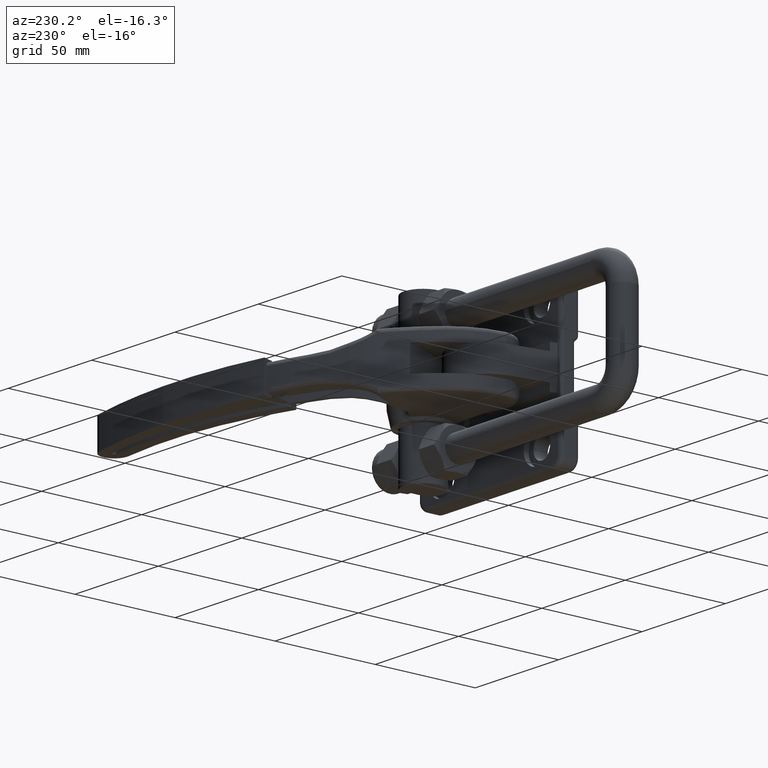
[diagram: clean part render]
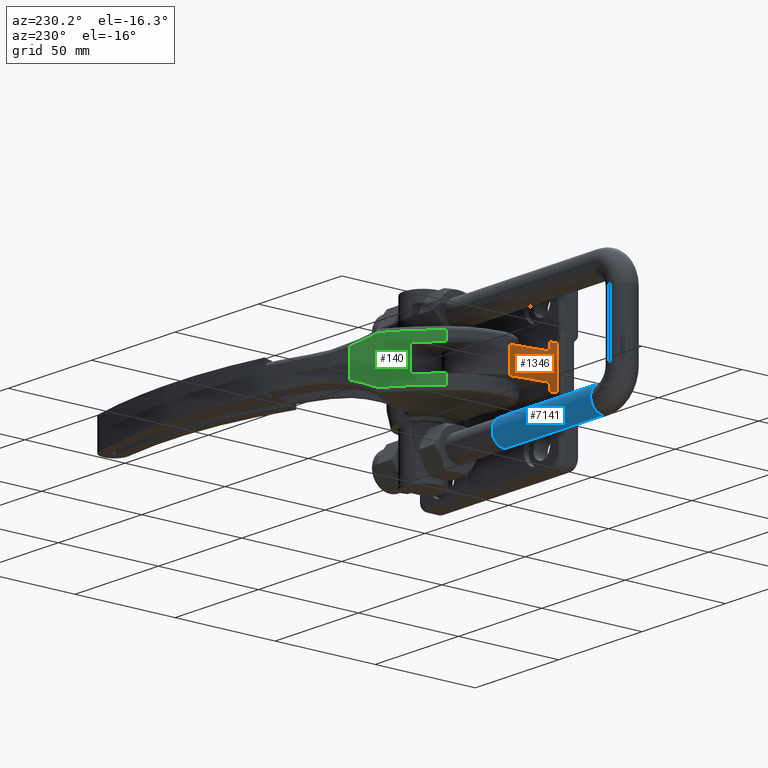
[diagram: same view with three faces highlighted in distinct colors, each labeled with its STEP entity id]
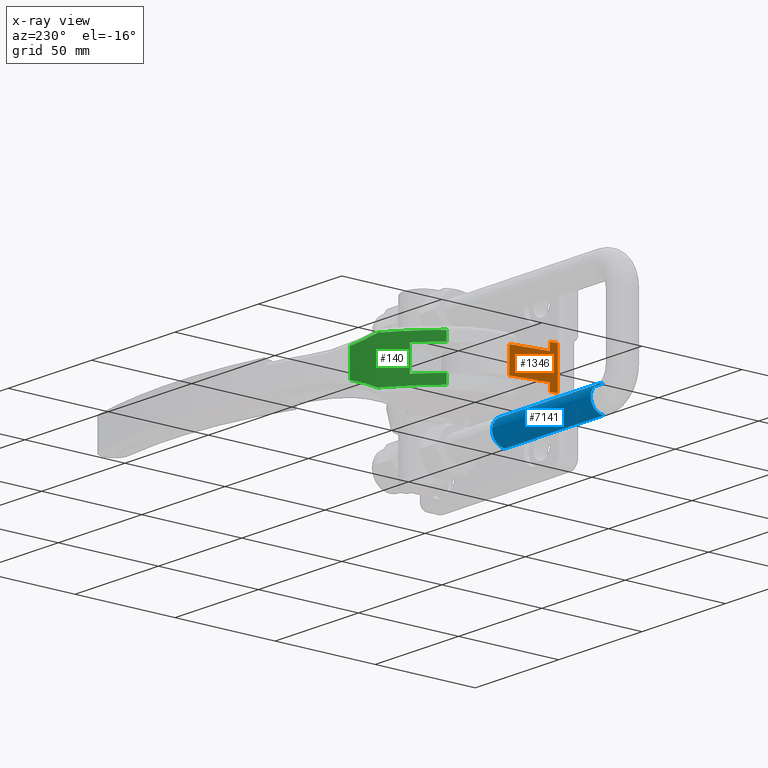
[diagram: x-ray of the same camera — body ghosted, the three highlighted faces saturated]
A machine part, auxiliary view with three faces highlighted in distinct colors.
The next image is the same camera in x-ray (body ghosted, the three faces saturated) — at least one of them is partly hidden behind the body in this view.
Their STEP definitions:

[orange] entity #1346 — the highlighted planar face has unit normal (0.9892, -0.1465, -0).
#401 = CARTESIAN_POINT ( 'NONE',  ( -37.71649960225405400, 31.09105221289900500, 6.250000000000000000 ) ) ;
#568 = LINE ( 'NONE', #6658, #5862 ) ;
#1132 = FACE_OUTER_BOUND ( 'NONE', #11174, .T. ) ;
#1207 = CARTESIAN_POINT ( 'NONE',  ( -40.39635312198255700, 13.00000000000000200, 10.00000000000000000 ) ) ;
#1346 = ADVANCED_FACE ( 'NONE', ( #1132 ), #12502, .F. ) ;
#1509 = VECTOR ( 'NONE', #10514, 1000.000000000000000 ) ;
#1609 = DIRECTION ( 'NONE',  ( 0.1465324831117064400, 0.9892058589561211200, -6.291524940292961300E-030 ) ) ;
#1743 = DIRECTION ( 'NONE',  ( -4.622231866529366000E-033, -1.380506584136770700E-030, -1.000000000000000000 ) ) ;
#2136 = AXIS2_PLACEMENT_3D ( 'NONE', #3549, #7562, #1609 ) ;
#2221 = CARTESIAN_POINT ( 'NONE',  ( -40.89999999999999100, 9.599999999999997900, -10.00000000000000000 ) ) ;
#2762 = CARTESIAN_POINT ( 'NONE',  ( -40.89999999999999100, 9.599999999999997900, 10.00000000000000000 ) ) ;
#2803 = DIRECTION ( 'NONE',  ( -0.1465324831117064400, -0.9892058589561212300, 6.291524940292959900E-030 ) ) ;
#2811 = ORIENTED_EDGE ( 'NONE', *, *, #12124, .F. ) ;
#3013 = VERTEX_POINT ( 'NONE', #4336 ) ;
#3535 = VERTEX_POINT ( 'NONE', #12265 ) ;
#3549 = CARTESIAN_POINT ( 'NONE',  ( -37.71649960225405400, 31.09105221289900800, 10.00000000000000000 ) ) ;
#3660 = DIRECTION ( 'NONE',  ( -0.1465324831117063600, -0.9892058589561211200, 0.0000000000000000000 ) ) ;
#3910 = LINE ( 'NONE', #2762, #6232 ) ;
#4106 = ORIENTED_EDGE ( 'NONE', *, *, #4660, .T. ) ;
#4296 = ORIENTED_EDGE ( 'NONE', *, *, #11807, .F. ) ;
#4336 = CARTESIAN_POINT ( 'NONE',  ( -40.89999999999999100, 9.599999999999997900, 10.00000000000000000 ) ) ;
#4381 = VECTOR ( 'NONE', #3660, 1000.000000000000200 ) ;
#4463 = LINE ( 'NONE', #6506, #12117 ) ;
#4627 = CARTESIAN_POINT ( 'NONE',  ( -37.71649960225405400, 31.09105221289900500, -6.250000000000000000 ) ) ;
#4660 = EDGE_CURVE ( 'NONE', #11852, #3535, #9699, .T. ) ;
#4754 = ORIENTED_EDGE ( 'NONE', *, *, #11905, .T. ) ;
#4813 = VECTOR ( 'NONE', #12193, 1000.000000000000000 ) ;
#5049 = LINE ( 'NONE', #9780, #12728 ) ;
#5261 = CARTESIAN_POINT ( 'NONE',  ( -37.71649960225405400, 31.09105221289900500, 6.250000000000000000 ) ) ;
#5349 = EDGE_CURVE ( 'NONE', #7041, #7050, #7479, .T. ) ;
#5562 = CARTESIAN_POINT ( 'NONE',  ( -37.71649960225405400, 31.09105221289900500, -6.250000000000000000 ) ) ;
#5573 = EDGE_CURVE ( 'NONE', #3013, #7241, #3910, .T. ) ;
#5862 = VECTOR ( 'NONE', #9599, 1000.000000000000000 ) ;
#5988 = ORIENTED_EDGE ( 'NONE', *, *, #5573, .F. ) ;
#6232 = VECTOR ( 'NONE', #1743, 1000.000000000000000 ) ;
#6292 = DIRECTION ( 'NONE',  ( -0.1465324831117063600, -0.9892058589561211200, 0.0000000000000000000 ) ) ;
#6506 = CARTESIAN_POINT ( 'NONE',  ( -37.71649960225405400, 31.09105221289900800, 10.00000000000000000 ) ) ;
#6658 = CARTESIAN_POINT ( 'NONE',  ( -37.71649960225405400, 31.09105221289900800, 10.00000000000000000 ) ) ;
#6794 = LINE ( 'NONE', #9516, #1509 ) ;
#7041 = VERTEX_POINT ( 'NONE', #7296 ) ;
#7050 = VERTEX_POINT ( 'NONE', #9328 ) ;
#7200 = VERTEX_POINT ( 'NONE', #12100 ) ;
#7241 = VERTEX_POINT ( 'NONE', #2221 ) ;
#7245 = LINE ( 'NONE', #5261, #12263 ) ;
#7296 = CARTESIAN_POINT ( 'NONE',  ( -40.39635312198255700, 13.00000000000000200, 10.00000000000000000 ) ) ;
#7341 = VERTEX_POINT ( 'NONE', #401 ) ;
#7479 = LINE ( 'NONE', #1207, #4813 ) ;
#7562 = DIRECTION ( 'NONE',  ( 0.9892058589561212300, -0.1465324831117064700, -3.439730132077567700E-029 ) ) ;
#8512 = DIRECTION ( 'NONE',  ( -0.1465324831117064400, -0.9892058589561212300, 6.291524940292959900E-030 ) ) ;
#9328 = CARTESIAN_POINT ( 'NONE',  ( -40.39635312198255700, 13.00000000000000000, 6.250000000000000000 ) ) ;
#9516 = CARTESIAN_POINT ( 'NONE',  ( -40.39635312198255700, 13.00000000000000200, 10.00000000000000000 ) ) ;
#9599 = DIRECTION ( 'NONE',  ( -4.622231866529366000E-033, -1.380506584136770700E-030, -1.000000000000000000 ) ) ;
#9699 = LINE ( 'NONE', #4627, #4381 ) ;
#9780 = CARTESIAN_POINT ( 'NONE',  ( -37.71649960225405400, 31.09105221289900800, -10.00000000000000000 ) ) ;
#10514 = DIRECTION ( 'NONE',  ( -4.622231866529366000E-033, -1.380506584136770700E-030, -1.000000000000000000 ) ) ;
#11174 = EDGE_LOOP ( 'NONE', ( #2811, #4754, #4106, #12688, #12696, #5988, #4296, #12343 ) ) ;
#11807 = EDGE_CURVE ( 'NONE', #7041, #3013, #4463, .T. ) ;
#11808 = EDGE_CURVE ( 'NONE', #3535, #7200, #6794, .T. ) ;
#11852 = VERTEX_POINT ( 'NONE', #5562 ) ;
#11905 = EDGE_CURVE ( 'NONE', #7341, #11852, #568, .T. ) ;
#12100 = CARTESIAN_POINT ( 'NONE',  ( -40.39635312198255700, 13.00000000000000200, -10.00000000000000000 ) ) ;
#12117 = VECTOR ( 'NONE', #8512, 999.9999999999998900 ) ;
#12124 = EDGE_CURVE ( 'NONE', #7341, #7050, #7245, .T. ) ;
#12193 = DIRECTION ( 'NONE',  ( -4.622231866529366000E-033, -1.380506584136770800E-030, -1.000000000000000000 ) ) ;
#12263 = VECTOR ( 'NONE', #6292, 1000.000000000000200 ) ;
#12265 = CARTESIAN_POINT ( 'NONE',  ( -40.39635312198255700, 13.00000000000000000, -6.250000000000000000 ) ) ;
#12343 = ORIENTED_EDGE ( 'NONE', *, *, #5349, .T. ) ;
#12363 = EDGE_CURVE ( 'NONE', #7200, #7241, #5049, .T. ) ;
#12502 = PLANE ( 'NONE',  #2136 ) ;
#12688 = ORIENTED_EDGE ( 'NONE', *, *, #11808, .T. ) ;
#12696 = ORIENTED_EDGE ( 'NONE', *, *, #12363, .T. ) ;
#12728 = VECTOR ( 'NONE', #2803, 999.9999999999998900 ) ;

[blue] entity #7141 — the highlighted cylindrical surface (edge-blend (fillet) strip) has radius 6.35 mm, axis along (1, -0.0023, 0).
#97 = AXIS2_PLACEMENT_3D ( 'NONE', #11982, #5361, #5936 ) ;
#484 = EDGE_LOOP ( 'NONE', ( #3686, #2255, #7410, #11477 ) ) ;
#754 = VECTOR ( 'NONE', #2638, 1000.000000000000200 ) ;
#1260 = AXIS2_PLACEMENT_3D ( 'NONE', #3231, #10184, #4212 ) ;
#2255 = ORIENTED_EDGE ( 'NONE', *, *, #4163, .F. ) ;
#2559 = CARTESIAN_POINT ( 'NONE',  ( -30.76788671759244000, 27.52169864269107800, -33.34999999999997300 ) ) ;
#2638 = DIRECTION ( 'NONE',  ( 0.9999974614537675600, -0.002253239006544745400, 4.573888958998415300E-016 ) ) ;
#2665 = EDGE_CURVE ( 'NONE', #8363, #6148, #8702, .T. ) ;
#2923 = CARTESIAN_POINT ( 'NONE',  ( -90.06773618180093900, 27.65531571577918200, -26.99999999999999600 ) ) ;
#3223 = CARTESIAN_POINT ( 'NONE',  ( -90.06773618180093900, 27.65531571577918200, -20.64999999999999500 ) ) ;
#3231 = CARTESIAN_POINT ( 'NONE',  ( -30.76788671759245400, 27.52169864269107800, -26.99999999999996800 ) ) ;
#3272 = EDGE_CURVE ( 'NONE', #11074, #12253, #10732, .T. ) ;
#3440 = FACE_OUTER_BOUND ( 'NONE', #484, .T. ) ;
#3686 = ORIENTED_EDGE ( 'NONE', *, *, #2665, .F. ) ;
#3923 = DIRECTION ( 'NONE',  ( 0.002253239006545706000, 0.9999974614537675600, 0.0000000000000000000 ) ) ;
#4163 = EDGE_CURVE ( 'NONE', #11074, #8363, #6100, .T. ) ;
#4212 = DIRECTION ( 'NONE',  ( -5.463695987328525500E-016, 0.0000000000000000000, 1.000000000000000000 ) ) ;
#5361 = DIRECTION ( 'NONE',  ( 0.9999974614537675600, -0.002253239006544745400, 4.573888958998415300E-016 ) ) ;
#5400 = VECTOR ( 'NONE', #11939, 1000.000000000000200 ) ;
#5430 = CYLINDRICAL_SURFACE ( 'NONE', #97, 6.350000000000001400 ) ;
#5914 = EDGE_CURVE ( 'NONE', #6148, #12253, #11904, .T. ) ;
#5936 = DIRECTION ( 'NONE',  ( 0.0000000000000000000, 0.0000000000000000000, 1.000000000000000000 ) ) ;
#6100 = CIRCLE ( 'NONE', #11638, 6.349999999999998800 ) ;
#6148 = VERTEX_POINT ( 'NONE', #2559 ) ;
#6472 = CARTESIAN_POINT ( 'NONE',  ( -30.76788671759245400, 27.52169864269107800, -20.64999999999996700 ) ) ;
#7141 = ADVANCED_FACE ( 'NONE', ( #3440 ), #5430, .T. ) ;
#7410 = ORIENTED_EDGE ( 'NONE', *, *, #3272, .T. ) ;
#7999 = CARTESIAN_POINT ( 'NONE',  ( -90.06773618180093900, 27.65531571577918200, -33.34999999999999400 ) ) ;
#8363 = VERTEX_POINT ( 'NONE', #7999 ) ;
#8613 = CARTESIAN_POINT ( 'NONE',  ( -90.06773618180093900, 27.65531571577918200, -33.34999999999999400 ) ) ;
#8702 = LINE ( 'NONE', #8613, #754 ) ;
#9894 = DIRECTION ( 'NONE',  ( -0.9999974614537677800, 0.002253239006544745800, -2.812591432557387700E-016 ) ) ;
#9925 = CARTESIAN_POINT ( 'NONE',  ( -90.06773618180093900, 27.65531571577918200, -20.64999999999999500 ) ) ;
#10184 = DIRECTION ( 'NONE',  ( 0.9999974614537677800, -0.002253239006544745800, 6.827962659925420800E-016 ) ) ;
#10732 = LINE ( 'NONE', #9925, #5400 ) ;
#11074 = VERTEX_POINT ( 'NONE', #3223 ) ;
#11477 = ORIENTED_EDGE ( 'NONE', *, *, #5914, .F. ) ;
#11638 = AXIS2_PLACEMENT_3D ( 'NONE', #2923, #9894, #3923 ) ;
#11904 = CIRCLE ( 'NONE', #1260, 6.350000000000001400 ) ;
#11939 = DIRECTION ( 'NONE',  ( 0.9999974614537675600, -0.002253239006544745400, 4.573888958998415300E-016 ) ) ;
#11982 = CARTESIAN_POINT ( 'NONE',  ( -90.06773618180093900, 27.65531571577918200, -26.99999999999999600 ) ) ;
#12253 = VERTEX_POINT ( 'NONE', #6472 ) ;

[green] entity #140 — the highlighted cylindrical surface (partial cylindrical patch) has radius 90 mm, axis along (0, 0, -1).
#88 = B_SPLINE_CURVE_WITH_KNOTS ( 'NONE', 3,
 ( #2013, #8998, #4989, #12010 ),
 .UNSPECIFIED., .F., .F.,
 ( 4, 4 ),
 ( 3.878959614448861900E-018, 0.01213580260792407300 ),
 .UNSPECIFIED. ) ;
#140 = ADVANCED_FACE ( 'NONE', ( #12252 ), #11629, .T. ) ;
#220 = ORIENTED_EDGE ( 'NONE', *, *, #1698, .T. ) ;
#310 = ORIENTED_EDGE ( 'NONE', *, *, #2824, .T. ) ;
#573 = VERTEX_POINT ( 'NONE', #5157 ) ;
#715 = DIRECTION ( 'NONE',  ( 0.0000000000000000000, 0.0000000000000000000, 1.000000000000000000 ) ) ;
#958 = CIRCLE ( 'NONE', #1590, 89.99999999999998600 ) ;
#987 = DIRECTION ( 'NONE',  ( 0.0000000000000000000, 0.0000000000000000000, 1.000000000000000000 ) ) ;
#1099 = CIRCLE ( 'NONE', #1357, 89.99999999999998600 ) ;
#1180 = ORIENTED_EDGE ( 'NONE', *, *, #6844, .T. ) ;
#1295 = DIRECTION ( 'NONE',  ( -0.0000000000000000000, 0.0000000000000000000, -1.000000000000000000 ) ) ;
#1297 = VERTEX_POINT ( 'NONE', #1482 ) ;
#1357 = AXIS2_PLACEMENT_3D ( 'NONE', #6662, #715, #7660 ) ;
#1482 = CARTESIAN_POINT ( 'NONE',  ( -15.05314205689577800, 61.83921952203580500, 6.249999999999999100 ) ) ;
#1533 = DIRECTION ( 'NONE',  ( 0.0000000000000000000, 0.0000000000000000000, 1.000000000000000000 ) ) ;
#1572 = CARTESIAN_POINT ( 'NONE',  ( -5.035186063766673200, 69.52314324480114700, 10.99999999999999800 ) ) ;
#1588 = B_SPLINE_CURVE_WITH_KNOTS ( 'NONE', 3,
 ( #8997, #2011, #7973, #9988 ),
 .UNSPECIFIED., .F., .F.,
 ( 4, 4 ),
 ( 0.0000000000000000000, 0.01213580260792407000 ),
 .UNSPECIFIED. ) ;
#1590 = AXIS2_PLACEMENT_3D ( 'NONE', #6950, #987, #7946 ) ;
#1698 = EDGE_CURVE ( 'NONE', #3700, #9620, #1588, .T. ) ;
#1777 = ORIENTED_EDGE ( 'NONE', *, *, #6011, .F. ) ;
#1835 = ORIENTED_EDGE ( 'NONE', *, *, #10380, .T. ) ;
#1912 = VERTEX_POINT ( 'NONE', #2449 ) ;
#2011 = CARTESIAN_POINT ( 'NONE',  ( -1.960948593039364200, 71.55536364496826700, 9.279777787065254900 ) ) ;
#2013 = CARTESIAN_POINT ( 'NONE',  ( 4.847974974533242300, 75.19188911673445800, -6.820747307356692000 ) ) ;
#2017 = CARTESIAN_POINT ( 'NONE',  ( -24.84498041463658400, 51.69857728054422100, -6.249999999999999100 ) ) ;
#2118 = CARTESIAN_POINT ( 'NONE',  ( 44.59543929099410800, -5.555489047585346000, 10.99999999999999800 ) ) ;
#2133 = CARTESIAN_POINT ( 'NONE',  ( 4.847974974533242300, 75.19188911673445800, 6.349999999999998800 ) ) ;
#2449 = CARTESIAN_POINT ( 'NONE',  ( -15.05314205689577800, 61.83921952203580500, -6.249999999999999100 ) ) ;
#2651 = CIRCLE ( 'NONE', #6263, 90.00000000000000000 ) ;
#2736 = ORIENTED_EDGE ( 'NONE', *, *, #9111, .F. ) ;
#2824 = EDGE_CURVE ( 'NONE', #9620, #3667, #6198, .T. ) ;
#2842 = ORIENTED_EDGE ( 'NONE', *, *, #10706, .T. ) ;
#3089 = CARTESIAN_POINT ( 'NONE',  ( -24.84498041463658400, 51.69857728054422100, 10.99999999999999800 ) ) ;
#3121 = DIRECTION ( 'NONE',  ( 0.9995411118417112400, -0.03029134758038410900, 0.0000000000000000000 ) ) ;
#3161 = VECTOR ( 'NONE', #3868, 1000.000000000000000 ) ;
#3564 = CARTESIAN_POINT ( 'NONE',  ( 4.847974974533242300, 75.19188911673445800, -6.820747307356692000 ) ) ;
#3667 = VERTEX_POINT ( 'NONE', #3564 ) ;
#3700 = VERTEX_POINT ( 'NONE', #1572 ) ;
#3719 = CARTESIAN_POINT ( 'NONE',  ( -15.05314205689576400, 61.83921952203577600, 12.99999999999999800 ) ) ;
#3851 = EDGE_CURVE ( 'NONE', #1912, #1297, #11577, .T. ) ;
#3868 = DIRECTION ( 'NONE',  ( -0.0000000000000000000, 0.0000000000000000000, -1.000000000000000000 ) ) ;
#4280 = EDGE_CURVE ( 'NONE', #10051, #12577, #5792, .T. ) ;
#4646 = VERTEX_POINT ( 'NONE', #11514 ) ;
#4989 = CARTESIAN_POINT ( 'NONE',  ( -1.960948593039362900, 71.55536364496828100, -9.279777787065254900 ) ) ;
#5157 = CARTESIAN_POINT ( 'NONE',  ( -5.035186063766673200, 69.52314324480113300, -11.00000000000000000 ) ) ;
#5363 = EDGE_LOOP ( 'NONE', ( #2736, #7354, #2842, #8623, #11932, #220, #310, #1180, #1835, #1777 ) ) ;
#5792 = LINE ( 'NONE', #8090, #3161 ) ;
#6011 = EDGE_CURVE ( 'NONE', #7148, #4646, #11268, .T. ) ;
#6081 = DIRECTION ( 'NONE',  ( -0.0000000000000000000, 0.0000000000000000000, -1.000000000000000000 ) ) ;
#6198 = LINE ( 'NONE', #2133, #11525 ) ;
#6263 = AXIS2_PLACEMENT_3D ( 'NONE', #2118, #9086, #3121 ) ;
#6510 = CARTESIAN_POINT ( 'NONE',  ( 44.59543929099410800, -5.555489047585346000, 12.99999999999999800 ) ) ;
#6573 = VECTOR ( 'NONE', #6652, 1000.000000000000000 ) ;
#6652 = DIRECTION ( 'NONE',  ( 0.0000000000000000000, -0.0000000000000000000, 1.000000000000000000 ) ) ;
#6662 = CARTESIAN_POINT ( 'NONE',  ( 44.59543929099410800, -5.555489047585346000, 6.249999999999999100 ) ) ;
#6844 = EDGE_CURVE ( 'NONE', #3667, #573, #88, .T. ) ;
#6950 = CARTESIAN_POINT ( 'NONE',  ( 44.59543929099410800, -5.555489047585346000, -11.00000000000000000 ) ) ;
#7097 = CARTESIAN_POINT ( 'NONE',  ( -24.84498041463658400, 51.69857728054422100, 6.250000000000000900 ) ) ;
#7148 = VERTEX_POINT ( 'NONE', #2017 ) ;
#7354 = ORIENTED_EDGE ( 'NONE', *, *, #3851, .T. ) ;
#7484 = CARTESIAN_POINT ( 'NONE',  ( 44.59543929099410800, -5.555489047585346000, -6.249999999999999100 ) ) ;
#7660 = DIRECTION ( 'NONE',  ( 0.9995411118417111300, -0.03029134758038943800, 0.0000000000000000000 ) ) ;
#7946 = DIRECTION ( 'NONE',  ( 0.9995411118417111300, -0.03029134758038943800, 0.0000000000000000000 ) ) ;
#7973 = CARTESIAN_POINT ( 'NONE',  ( 1.325859254600589000, 73.45814652249715900, 7.886675981871718500 ) ) ;
#8090 = CARTESIAN_POINT ( 'NONE',  ( -24.84498041463658400, 51.69857728054422100, 12.99999999999999800 ) ) ;
#8265 = CARTESIAN_POINT ( 'NONE',  ( -24.84498041463658400, 51.69857728054422100, 12.99999999999999800 ) ) ;
#8507 = DIRECTION ( 'NONE',  ( 0.9995411118417111300, -0.03029134758038943800, 0.0000000000000000000 ) ) ;
#8590 = VECTOR ( 'NONE', #1295, 1000.000000000000000 ) ;
#8623 = ORIENTED_EDGE ( 'NONE', *, *, #4280, .F. ) ;
#8997 = CARTESIAN_POINT ( 'NONE',  ( -5.035186063766673200, 69.52314324480114700, 10.99999999999999800 ) ) ;
#8998 = CARTESIAN_POINT ( 'NONE',  ( 1.325859254600598700, 73.45814652249715900, -7.886675981871727400 ) ) ;
#9086 = DIRECTION ( 'NONE',  ( -0.0000000000000000000, -0.0000000000000000000, -1.000000000000000000 ) ) ;
#9111 = EDGE_CURVE ( 'NONE', #1912, #7148, #11760, .T. ) ;
#9486 = DIRECTION ( 'NONE',  ( -0.9995411118417111300, 0.03029134758038943800, 0.0000000000000000000 ) ) ;
#9499 = CARTESIAN_POINT ( 'NONE',  ( 4.847974974533242300, 75.19188911673445800, 6.820747307356677800 ) ) ;
#9620 = VERTEX_POINT ( 'NONE', #9499 ) ;
#9694 = DIRECTION ( 'NONE',  ( -0.0000000000000000000, 0.0000000000000000000, -1.000000000000000000 ) ) ;
#9988 = CARTESIAN_POINT ( 'NONE',  ( 4.847974974533242300, 75.19188911673445800, 6.820747307356677800 ) ) ;
#10051 = VERTEX_POINT ( 'NONE', #3089 ) ;
#10380 = EDGE_CURVE ( 'NONE', #573, #4646, #958, .T. ) ;
#10473 = EDGE_CURVE ( 'NONE', #10051, #3700, #2651, .T. ) ;
#10706 = EDGE_CURVE ( 'NONE', #1297, #12577, #1099, .T. ) ;
#11216 = AXIS2_PLACEMENT_3D ( 'NONE', #7484, #1533, #8507 ) ;
#11268 = LINE ( 'NONE', #8265, #8590 ) ;
#11514 = CARTESIAN_POINT ( 'NONE',  ( -24.84498041463658400, 51.69857728054422100, -10.99999999999999300 ) ) ;
#11525 = VECTOR ( 'NONE', #6081, 1000.000000000000000 ) ;
#11577 = LINE ( 'NONE', #3719, #6573 ) ;
#11629 = CYLINDRICAL_SURFACE ( 'NONE', #12808, 90.00000000000000000 ) ;
#11760 = CIRCLE ( 'NONE', #11216, 89.99999999999998600 ) ;
#11932 = ORIENTED_EDGE ( 'NONE', *, *, #10473, .T. ) ;
#12010 = CARTESIAN_POINT ( 'NONE',  ( -5.035186063766673200, 69.52314324480113300, -11.00000000000000000 ) ) ;
#12252 = FACE_OUTER_BOUND ( 'NONE', #5363, .T. ) ;
#12577 = VERTEX_POINT ( 'NONE', #7097 ) ;
#12808 = AXIS2_PLACEMENT_3D ( 'NONE', #6510, #9694, #9486 ) ;